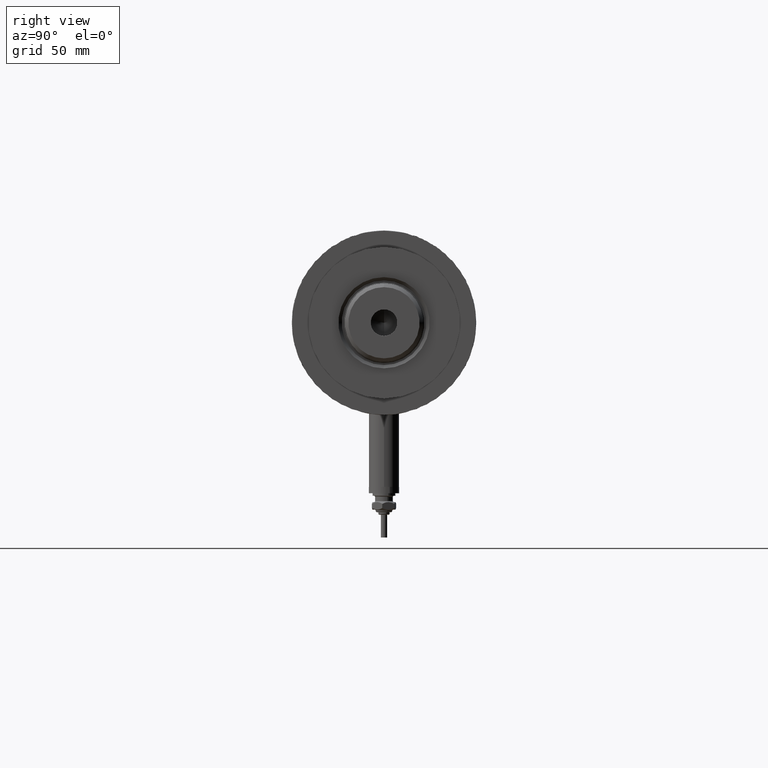
[diagram: clean part render]
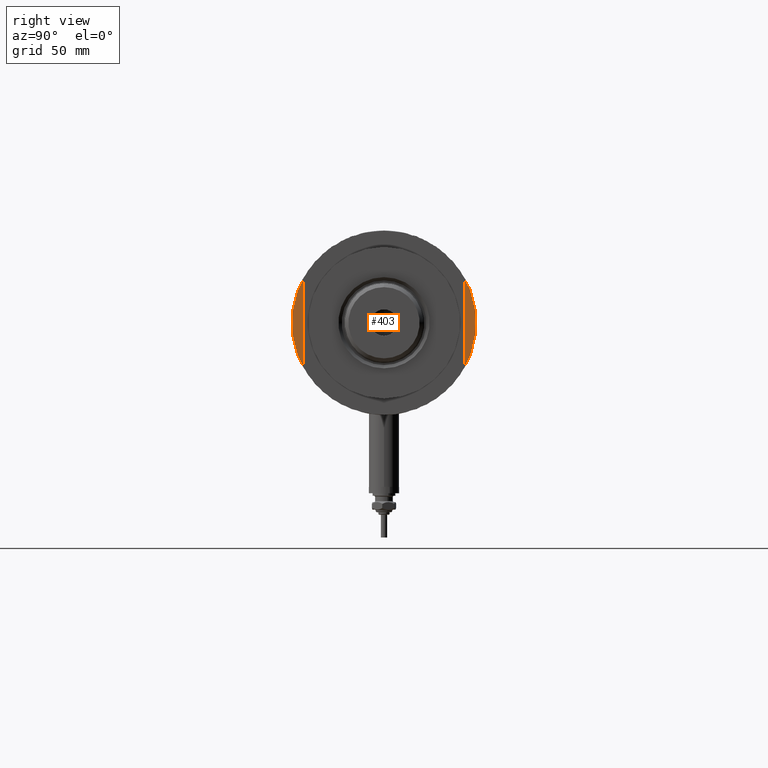
[diagram: same view with one face highlighted and labeled with its STEP entity id]
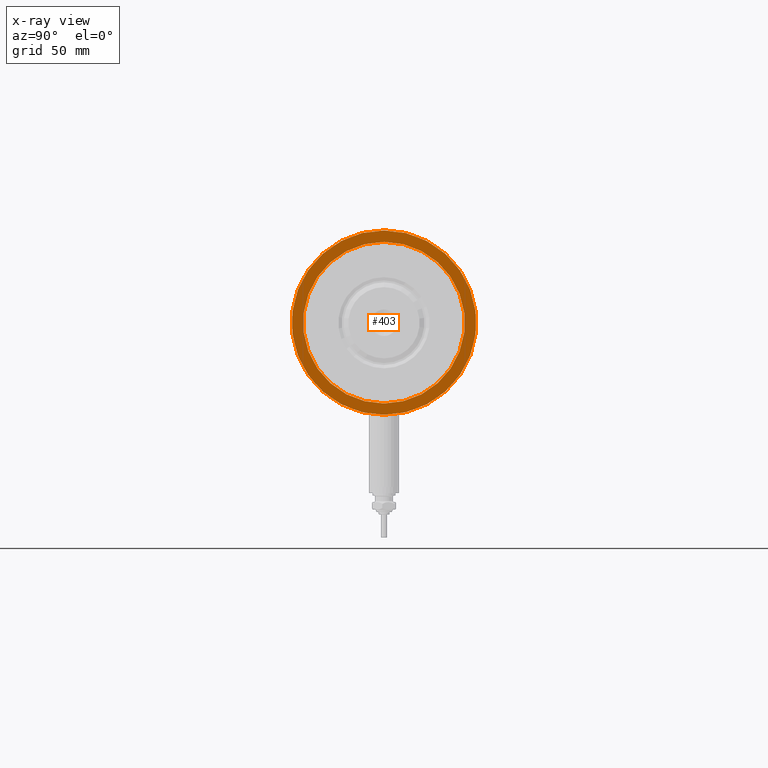
[diagram: x-ray of the same camera — body ghosted, the highlighted face saturated]
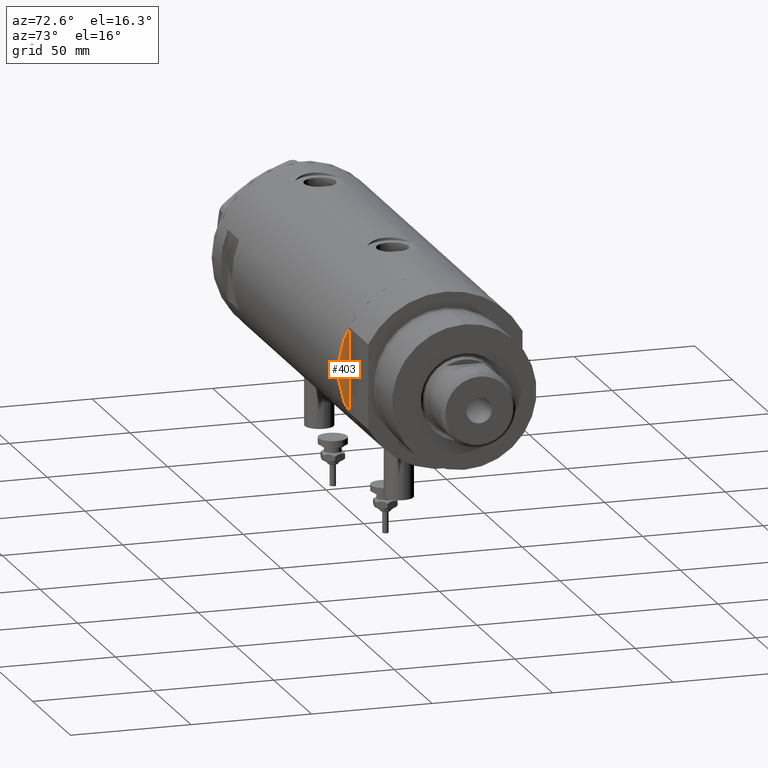
[diagram: same view with one face highlighted and labeled with its STEP entity id]
A machine part, right view. The second image highlights one B-rep face of the part: STEP entity #403.
The next image is the same camera in x-ray: the body ghosted, the highlighted face saturated — about 0% of this face is hidden behind the body in this view.
A second angle (auxiliary view) of the same face is appended — the face is thin or edge-on in the first view.
In plain terms, the highlighted planar face has unit normal (-1, -0, 0).
Its self-contained STEP definition (entity closure, byte-faithful):
#403 = ADVANCED_FACE ( 'NONE', ( #2821, #4647 ), #2755, .F. ) ;
#483 = AXIS2_PLACEMENT_3D ( 'NONE', #555, #960, #4579 ) ;
#555 = CARTESIAN_POINT ( 'NONE',  ( 0.000000000000000000, 0.000000000000000000, -82.90000000000000568 ) ) ;
#626 = VERTEX_POINT ( 'NONE', #1784 ) ;
#652 = DIRECTION ( 'NONE',  ( 0.000000000000000000, 0.000000000000000000, 1.000000000000000000 ) ) ;
#660 = CIRCLE ( 'NONE', #3145, 32.00000000000000000 ) ;
#695 = DIRECTION ( 'NONE',  ( 0.000000000000000000, 0.000000000000000000, -1.000000000000000000 ) ) ;
#852 = DIRECTION ( 'NONE',  ( 1.000000000000000000, 0.000000000000000000, 0.000000000000000000 ) ) ;
#883 = EDGE_CURVE ( 'NONE', #626, #1401, #660, .T. ) ;
#960 = DIRECTION ( 'NONE',  ( 0.000000000000000000, 0.000000000000000000, 1.000000000000000000 ) ) ;
#1129 = DIRECTION ( 'NONE',  ( -1.000000000000000000, 0.000000000000000000, 0.000000000000000000 ) ) ;
#1388 = EDGE_CURVE ( 'NONE', #2469, #3630, #5664, .T. ) ;
#1401 = VERTEX_POINT ( 'NONE', #4463 ) ;
#1447 = ORIENTED_EDGE ( 'NONE', *, *, #1388, .F. ) ;
#1693 = ORIENTED_EDGE ( 'NONE', *, *, #883, .F. ) ;
#1784 = CARTESIAN_POINT ( 'NONE',  ( 32.00000000000000000, 3.918869757271530263E-15, -82.90000000000000568 ) ) ;
#1828 = AXIS2_PLACEMENT_3D ( 'NONE', #4781, #2917, #1129 ) ;
#2074 = EDGE_CURVE ( 'NONE', #1401, #626, #2783, .T. ) ;
#2469 = VERTEX_POINT ( 'NONE', #5686 ) ;
#2485 = CIRCLE ( 'NONE', #5841, 36.50000000000000000 ) ;
#2617 = CARTESIAN_POINT ( 'NONE',  ( 0.000000000000000000, 0.000000000000000000, -82.90000000000000568 ) ) ;
#2755 = PLANE ( 'NONE',  #483 ) ;
#2783 = CIRCLE ( 'NONE', #1828, 32.00000000000000000 ) ;
#2821 = FACE_BOUND ( 'NONE', #3977, .T. ) ;
#2917 = DIRECTION ( 'NONE',  ( 0.000000000000000000, 0.000000000000000000, -1.000000000000000000 ) ) ;
#2993 = ORIENTED_EDGE ( 'NONE', *, *, #5104, .F. ) ;
#3122 = DIRECTION ( 'NONE',  ( 0.000000000000000000, 0.000000000000000000, 1.000000000000000000 ) ) ;
#3145 = AXIS2_PLACEMENT_3D ( 'NONE', #2617, #695, #5291 ) ;
#3630 = VERTEX_POINT ( 'NONE', #4838 ) ;
#3977 = EDGE_LOOP ( 'NONE', ( #5570, #1693 ) ) ;
#4036 = CARTESIAN_POINT ( 'NONE',  ( 0.000000000000000000, 0.000000000000000000, -82.90000000000000568 ) ) ;
#4309 = AXIS2_PLACEMENT_3D ( 'NONE', #4773, #652, #4323 ) ;
#4323 = DIRECTION ( 'NONE',  ( 1.000000000000000000, 0.000000000000000000, 0.000000000000000000 ) ) ;
#4463 = CARTESIAN_POINT ( 'NONE',  ( -32.00000000000000000, 0.000000000000000000, -82.90000000000000568 ) ) ;
#4579 = DIRECTION ( 'NONE',  ( 1.000000000000000000, 0.000000000000000000, -0.000000000000000000 ) ) ;
#4647 = FACE_OUTER_BOUND ( 'NONE', #5512, .T. ) ;
#4773 = CARTESIAN_POINT ( 'NONE',  ( 0.000000000000000000, 0.000000000000000000, -82.90000000000000568 ) ) ;
#4781 = CARTESIAN_POINT ( 'NONE',  ( 0.000000000000000000, 0.000000000000000000, -82.90000000000000568 ) ) ;
#4838 = CARTESIAN_POINT ( 'NONE',  ( 36.50000000000000000, 0.000000000000000000, -82.90000000000000568 ) ) ;
#5104 = EDGE_CURVE ( 'NONE', #3630, #2469, #2485, .T. ) ;
#5291 = DIRECTION ( 'NONE',  ( -1.000000000000000000, 0.000000000000000000, 0.000000000000000000 ) ) ;
#5512 = EDGE_LOOP ( 'NONE', ( #2993, #1447 ) ) ;
#5570 = ORIENTED_EDGE ( 'NONE', *, *, #2074, .F. ) ;
#5664 = CIRCLE ( 'NONE', #4309, 36.50000000000000000 ) ;
#5686 = CARTESIAN_POINT ( 'NONE',  ( -36.50000000000000000, 4.469960816887838430E-15, -82.90000000000000568 ) ) ;
#5841 = AXIS2_PLACEMENT_3D ( 'NONE', #4036, #3122, #852 ) ;